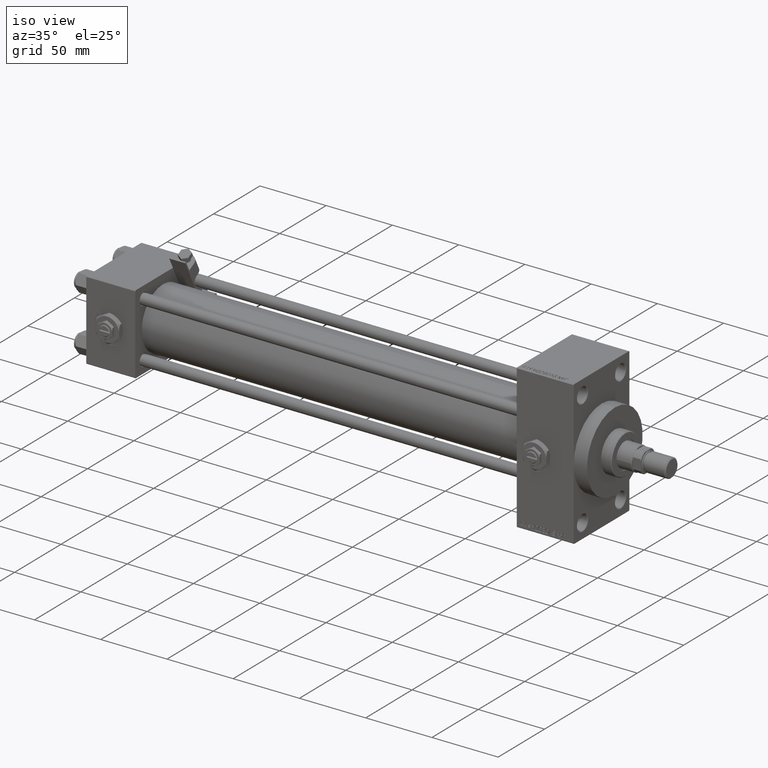
[diagram: clean part render]
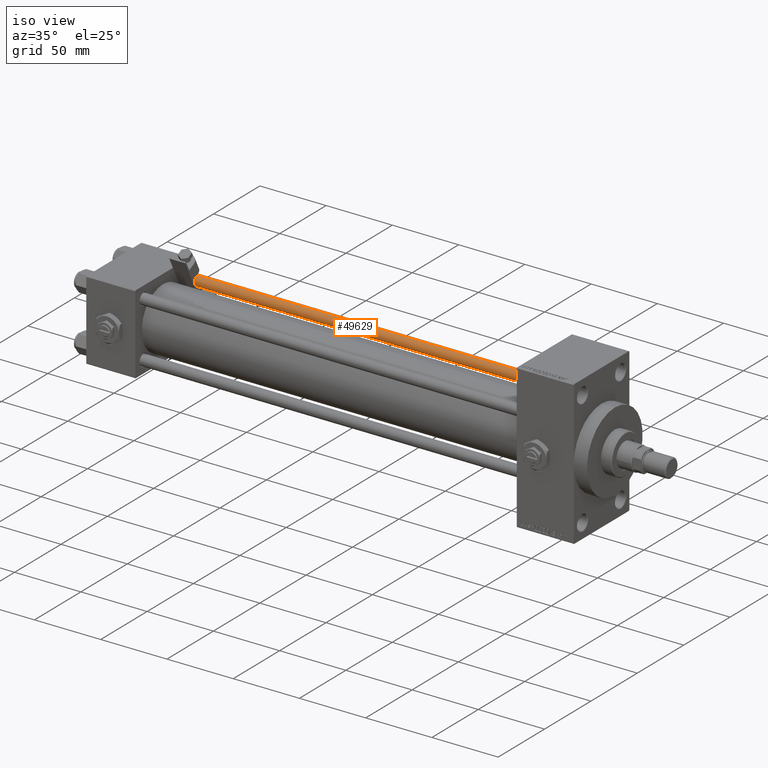
[diagram: same view with one face highlighted and labeled with its STEP entity id]
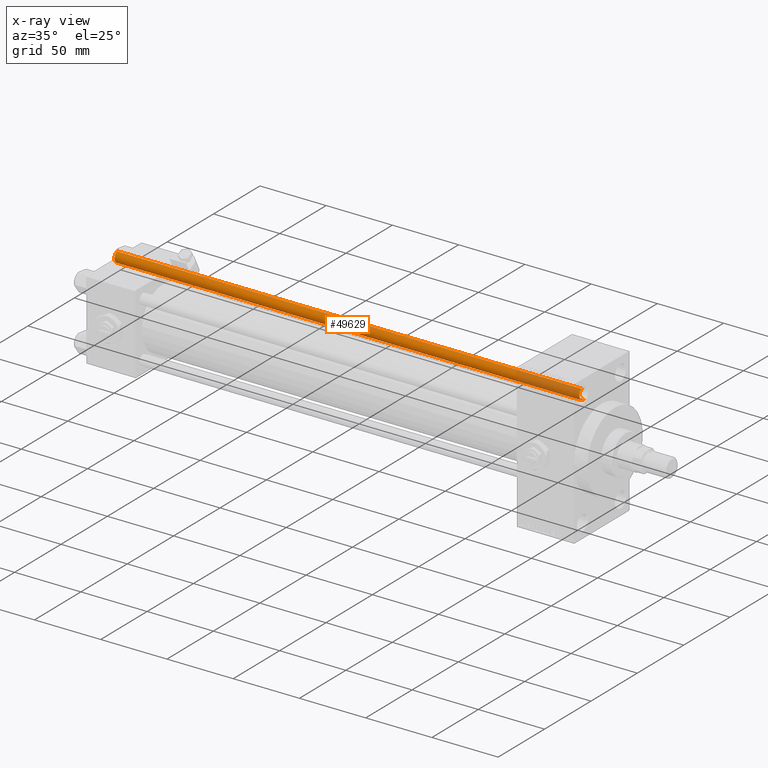
[diagram: x-ray of the same camera — body ghosted, the highlighted face saturated]
A machine part, iso view. The second image highlights one B-rep face of the part: STEP entity #49629.
The next image is the same camera in x-ray: the body ghosted, the highlighted face saturated — about 13% of this face is hidden behind the body in this view.
In plain terms, the highlighted cylindrical surface (edge-blend (fillet) strip) has radius 4 mm, axis along (-1, -0, 0).
Its self-contained STEP definition (entity closure, byte-faithful):
#906 = DIRECTION ( 'NONE',  ( -0.000000000000000000, -0.000000000000000000, 1.000000000000000000 ) ) ;
#1216 = AXIS2_PLACEMENT_3D ( 'NONE', #45812, #50431, #10123 ) ;
#2502 = CARTESIAN_POINT ( 'NONE',  ( -4.000000000000000000, 0.000000000000000000, 0.5000000000000004441 ) ) ;
#3154 = FACE_OUTER_BOUND ( 'NONE', #21434, .T. ) ;
#3554 = VECTOR ( 'NONE', #43701, 1000.000000000000000 ) ;
#3644 = EDGE_CURVE ( 'NONE', #37329, #42022, #10613, .T. ) ;
#4124 = CARTESIAN_POINT ( 'NONE',  ( -4.000000000000000000, 0.000000000000000000, 352.0000000000000000 ) ) ;
#6484 = CARTESIAN_POINT ( 'NONE',  ( 4.000000000000000000, 4.898587196589412829E-16, 352.0000000000000000 ) ) ;
#7587 = AXIS2_PLACEMENT_3D ( 'NONE', #47249, #50598, #14913 ) ;
#9136 = CARTESIAN_POINT ( 'NONE',  ( 4.000000000000000000, 4.898587196589412829E-16, 0.5000000000000004441 ) ) ;
#10123 = DIRECTION ( 'NONE',  ( -1.000000000000000000, 0.000000000000000000, 0.000000000000000000 ) ) ;
#10613 = LINE ( 'NONE', #6484, #14431 ) ;
#14431 = VECTOR ( 'NONE', #22177, 1000.000000000000000 ) ;
#14566 = VERTEX_POINT ( 'NONE', #24921 ) ;
#14913 = DIRECTION ( 'NONE',  ( 1.000000000000000000, 0.000000000000000000, 0.000000000000000000 ) ) ;
#19573 = LINE ( 'NONE', #4124, #3554 ) ;
#19620 = VERTEX_POINT ( 'NONE', #2502 ) ;
#21434 = EDGE_LOOP ( 'NONE', ( #29407, #50738, #32999, #27501 ) ) ;
#22177 = DIRECTION ( 'NONE',  ( -0.000000000000000000, -0.000000000000000000, -1.000000000000000000 ) ) ;
#24007 = EDGE_CURVE ( 'NONE', #14566, #19620, #19573, .T. ) ;
#24921 = CARTESIAN_POINT ( 'NONE',  ( -4.000000000000000000, 0.000000000000000000, 351.5000000000000000 ) ) ;
#26256 = CARTESIAN_POINT ( 'NONE',  ( 4.000000000000000000, 4.898587196589412829E-16, 351.5000000000000000 ) ) ;
#26379 = AXIS2_PLACEMENT_3D ( 'NONE', #36105, #906, #32525 ) ;
#26482 = CIRCLE ( 'NONE', #7587, 4.000000000000000000 ) ;
#27501 = ORIENTED_EDGE ( 'NONE', *, *, #42047, .T. ) ;
#29407 = ORIENTED_EDGE ( 'NONE', *, *, #3644, .F. ) ;
#30148 = CYLINDRICAL_SURFACE ( 'NONE', #1216, 4.000000000000000000 ) ;
#32525 = DIRECTION ( 'NONE',  ( 1.000000000000000000, 0.000000000000000000, 0.000000000000000000 ) ) ;
#32999 = ORIENTED_EDGE ( 'NONE', *, *, #24007, .T. ) ;
#36105 = CARTESIAN_POINT ( 'NONE',  ( 0.000000000000000000, 0.000000000000000000, 0.5000000000000004441 ) ) ;
#37329 = VERTEX_POINT ( 'NONE', #26256 ) ;
#42022 = VERTEX_POINT ( 'NONE', #9136 ) ;
#42047 = EDGE_CURVE ( 'NONE', #19620, #42022, #45245, .T. ) ;
#43701 = DIRECTION ( 'NONE',  ( -0.000000000000000000, -0.000000000000000000, -1.000000000000000000 ) ) ;
#44240 = EDGE_CURVE ( 'NONE', #37329, #14566, #26482, .T. ) ;
#45245 = CIRCLE ( 'NONE', #26379, 4.000000000000000000 ) ;
#45812 = CARTESIAN_POINT ( 'NONE',  ( 0.000000000000000000, 0.000000000000000000, 352.0000000000000000 ) ) ;
#47249 = CARTESIAN_POINT ( 'NONE',  ( 0.000000000000000000, 0.000000000000000000, 351.5000000000000000 ) ) ;
#49629 = ADVANCED_FACE ( 'NONE', ( #3154 ), #30148, .T. ) ;
#50431 = DIRECTION ( 'NONE',  ( -0.000000000000000000, -0.000000000000000000, -1.000000000000000000 ) ) ;
#50598 = DIRECTION ( 'NONE',  ( 0.000000000000000000, 0.000000000000000000, -1.000000000000000000 ) ) ;
#50738 = ORIENTED_EDGE ( 'NONE', *, *, #44240, .T. ) ;